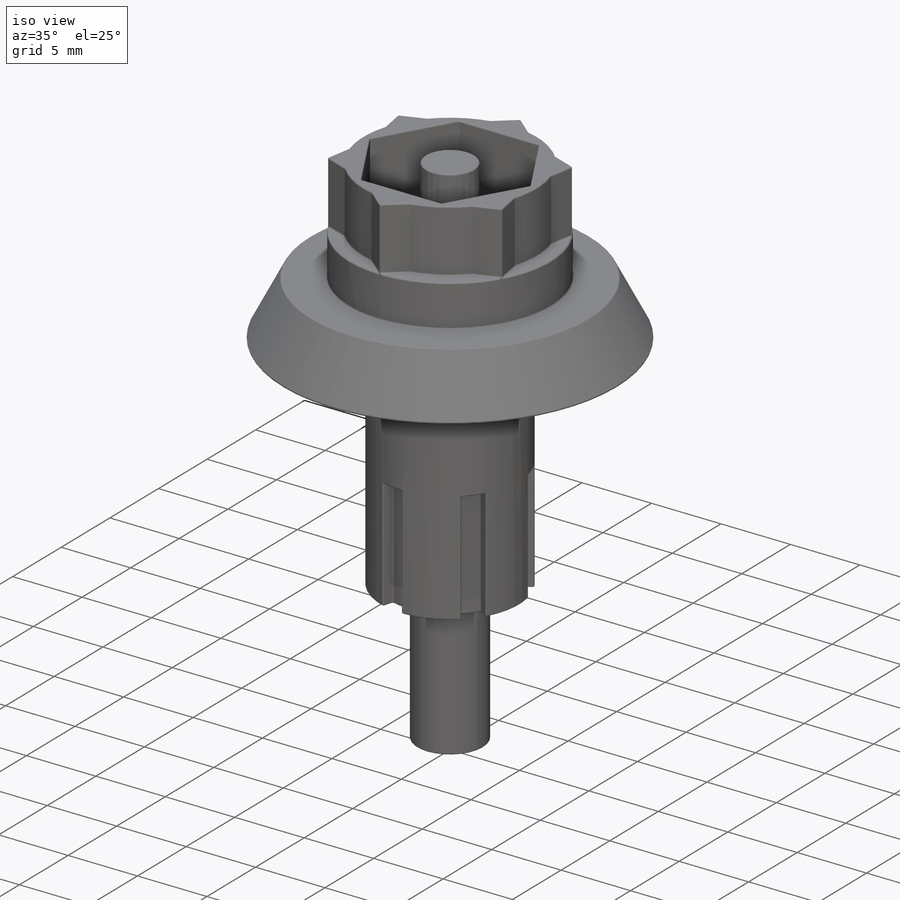
[diagram: iso view]
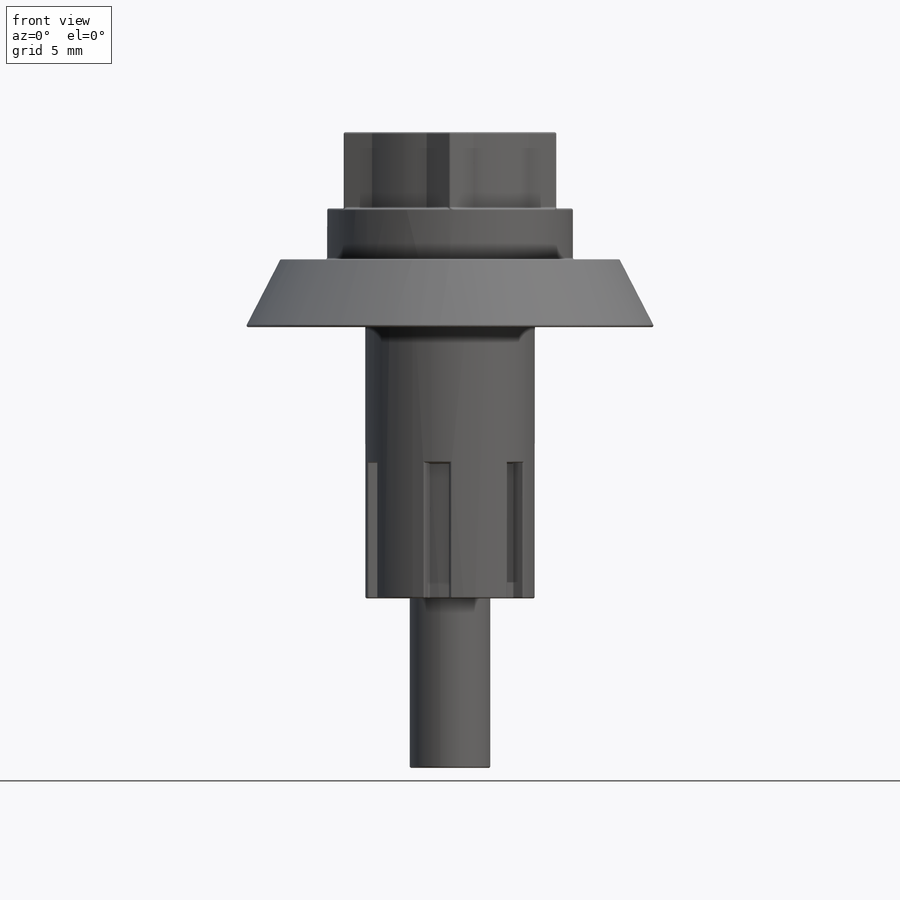
[diagram: front view]
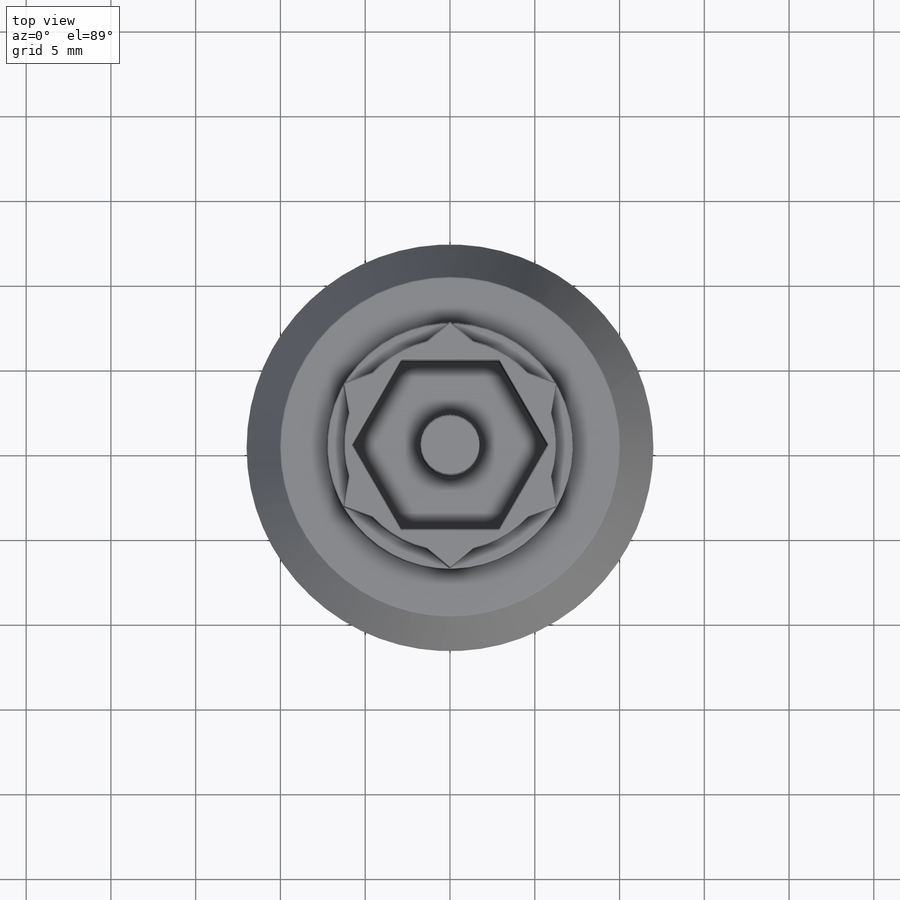
[diagram: top view]
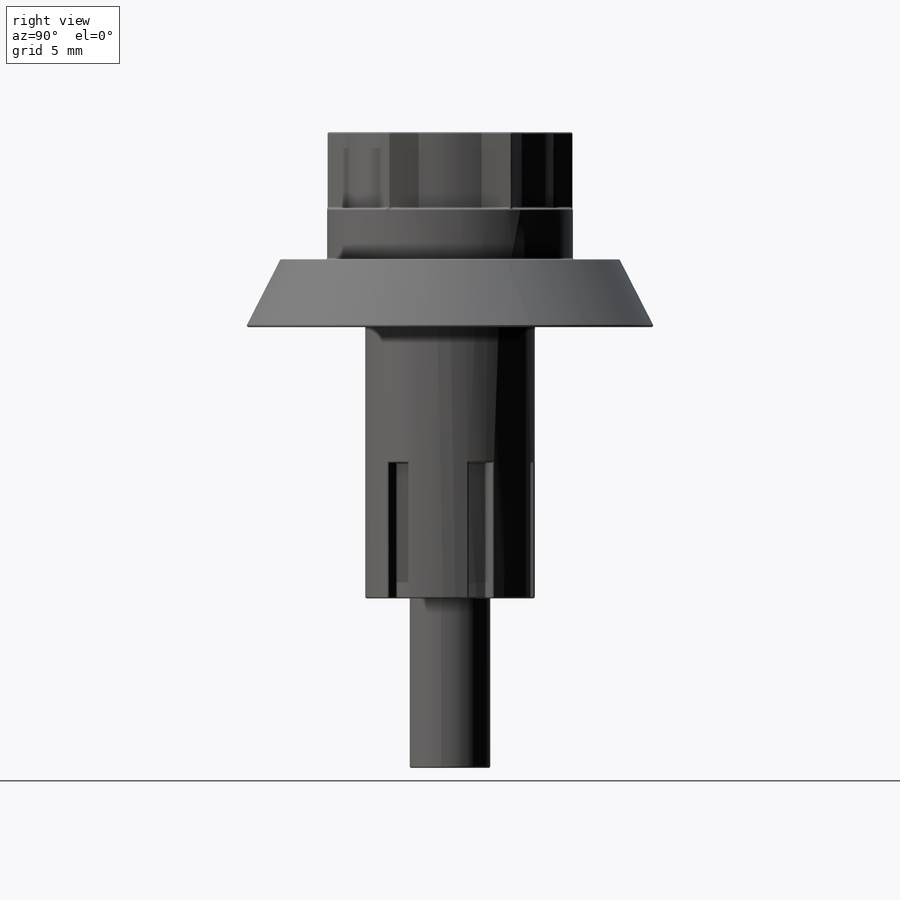
[diagram: right view]
SOLIDWORKS PART (.sldprt)
format: sldprt  version: not decoded by parser v0  size: 1,135,616 bytes
history: native  units: mm
features: sketch x10, extrude x5, fillet x4, cut_extrude x3, pattern_circular x2, material x1, revolve x1, cut_revolve x1 (+11 scaffold rows collapsed)
feature tree (38):
  scaffold x11  (default folders/planes/origin — collapsed)
  material  "Material <not specified>"
  sketch  "Sketch2"  dims[D2=10.0mm D3=12.5mm D1=0.0mm]
  extrude  "Boss-Extrude1"  Depth=4.5mm
  sketch  "Sketch3"  dims[D1=14.5mm]
  extrude  "Boss-Extrude2"  Depth=3mm
  sketch  "Sketch4"  dims[D1=10.0mm D2=4.5mm D3=4.0mm D4=5.0mm D5=16.0mm D6=2.375mm D7=10.0mm]
  revolve  "Revolve1"  Angle=360deg
  sketch  "Sketch5"  dims[D1=~9.479155mm D2=1.5mm D3=0.0mm]
  cut_extrude  "Cut-Extrude1"  Depth=8mm
  pattern_circular  "CirPattern1"  Count=6 Angle=360deg
  sketch  "Sketch6"  dims[D1=4.75mm D2=6.75mm]
  cut_extrude  "Cut-Extrude2"  Depth=10mm
  sketch  "Sketch7"  dims[D1=2.5mm]
  cut_extrude  "Cut-Extrude3"  Depth=10mm
  sketch  "Sketch8"  dims[D1=2.0mm D2=2.0mm D3=~22.222016mm]
  cut_revolve  "Cut-Revolve1"  Angle=360deg
  sketch  "Sketch9"  dims[D1=3.5mm]
  extrude  "Boss-Extrude3"  [1 undecoded]
  sketch  "Sketch12"
  extrude  "Boss-Extrude15"  [1 undecoded]
  sketch  "Sketch13"  dims[D1=2.75mm D2=1.375mm D3=0.0mm]
  extrude  "Boss-Extrude16"  [1 undecoded]
  pattern_circular  "CirPattern2"  Count=6 Angle=360deg
  fillet  "Fillet1"  Radius=0.1mm
  fillet  "Fillet2"  Radius=0.1mm
  fillet  "Fillet3"  Radius=0.1mm
  fillet  "Fillet4"  Radius=0.1mm
decode coverage: 22 of 26 modeling features carry decoded parameters
note: ~ marks probable driven/reference dimensions
note: 3 parameter values undecoded
summary: no parameter record found for 3 features
note: suppression state not decoded; provenance and decode notes live in map.json
